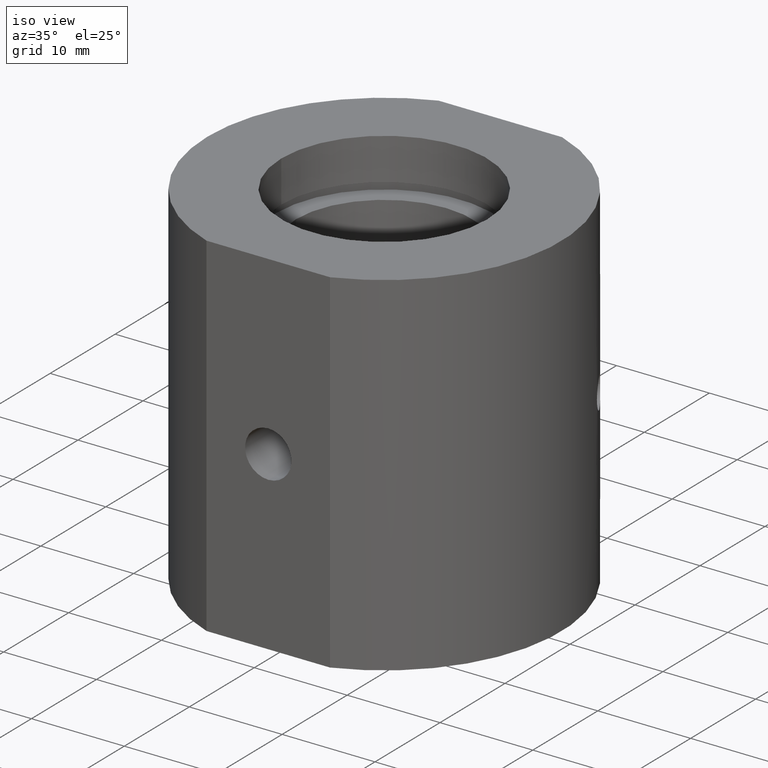
[diagram: clean part render]
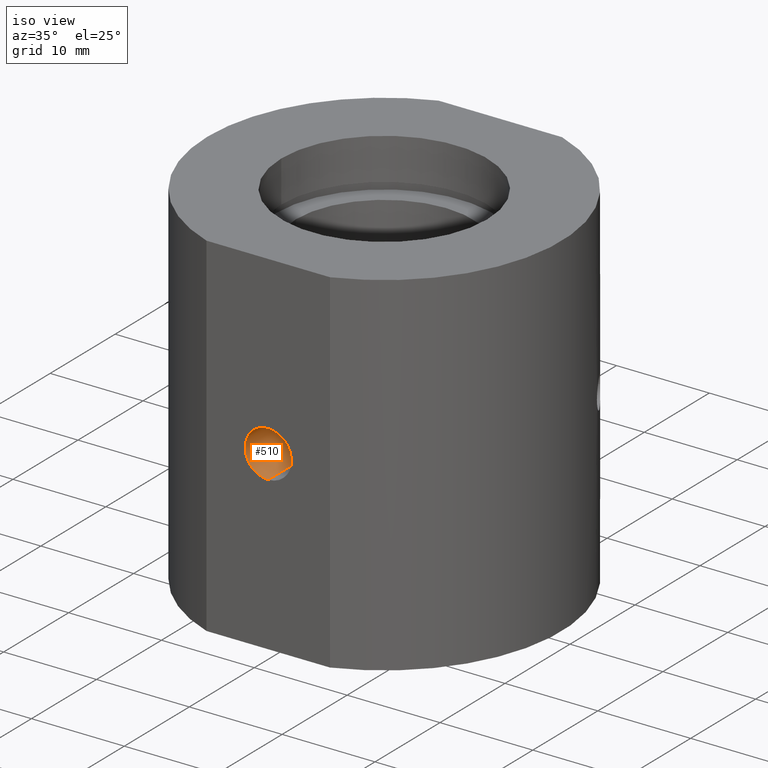
[diagram: same view with one face highlighted and labeled with its STEP entity id]
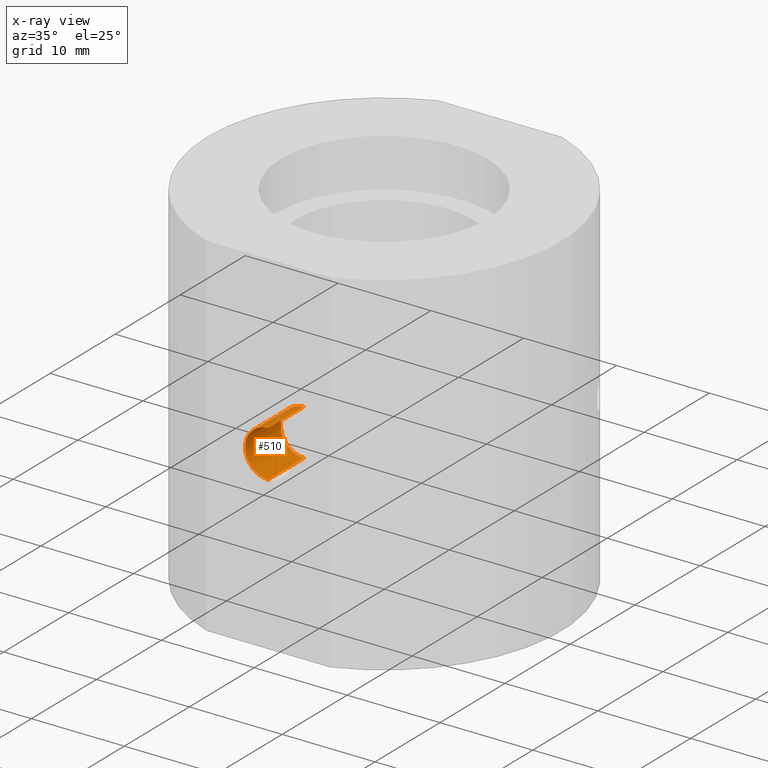
[diagram: x-ray of the same camera — body ghosted, the highlighted face saturated]
A machine part, iso view. The second image highlights one B-rep face of the part: STEP entity #510.
The next image is the same camera in x-ray: the body ghosted, the highlighted face saturated — about 1% of this face is hidden behind the body in this view.
In plain terms, the highlighted cylindrical surface (edge-blend (fillet) strip) has radius 2.5 mm, axis along (-0, -1, -0).
Its self-contained STEP definition (entity closure, byte-faithful):
#2 = DIRECTION ( 'NONE',  ( 0.0000000000000000000, 0.0000000000000000000, -1.000000000000000000 ) ) ;
#55 = VECTOR ( 'NONE', #774, 1000.000000000000000 ) ;
#90 = CIRCLE ( 'NONE', #659, 2.499999999999999100 ) ;
#122 = CARTESIAN_POINT ( 'NONE',  ( 5.204170427930421300E-015, -17.85000000000000100, -2.499999999999999100 ) ) ;
#164 = VERTEX_POINT ( 'NONE', #273 ) ;
#190 = CARTESIAN_POINT ( 'NONE',  ( 5.510332127717259900E-015, -17.85000000000000100, 2.499999999999998700 ) ) ;
#201 = LINE ( 'NONE', #1386, #1366 ) ;
#232 = CYLINDRICAL_SURFACE ( 'NONE', #310, 2.499999999999998700 ) ;
#249 = AXIS2_PLACEMENT_3D ( 'NONE', #1374, #487, #834 ) ;
#273 = CARTESIAN_POINT ( 'NONE',  ( 5.204170427930421300E-015, -12.35000000000000100, -2.499999999999997800 ) ) ;
#302 = EDGE_CURVE ( 'NONE', #1314, #852, #903, .T. ) ;
#310 = AXIS2_PLACEMENT_3D ( 'NONE', #459, #668, #2 ) ;
#459 = CARTESIAN_POINT ( 'NONE',  ( 5.204170427930421300E-015, -17.85000000000000100, 0.0000000000000000000 ) ) ;
#464 = DIRECTION ( 'NONE',  ( 0.0000000000000000000, 0.0000000000000000000, -1.000000000000000000 ) ) ;
#487 = DIRECTION ( 'NONE',  ( -0.0000000000000000000, -1.000000000000000000, -0.0000000000000000000 ) ) ;
#510 = ADVANCED_FACE ( 'NONE', ( #842 ), #232, .F. ) ;
#545 = ORIENTED_EDGE ( 'NONE', *, *, #1319, .F. ) ;
#656 = ORIENTED_EDGE ( 'NONE', *, *, #1004, .F. ) ;
#659 = AXIS2_PLACEMENT_3D ( 'NONE', #1135, #1143, #464 ) ;
#668 = DIRECTION ( 'NONE',  ( -0.0000000000000000000, -1.000000000000000000, -0.0000000000000000000 ) ) ;
#704 = ORIENTED_EDGE ( 'NONE', *, *, #826, .T. ) ;
#774 = DIRECTION ( 'NONE',  ( -0.0000000000000000000, -1.000000000000000000, -0.0000000000000000000 ) ) ;
#800 = CARTESIAN_POINT ( 'NONE',  ( 5.510332127717259900E-015, -17.85000000000000100, 2.499999999999999100 ) ) ;
#826 = EDGE_CURVE ( 'NONE', #852, #1341, #90, .T. ) ;
#834 = DIRECTION ( 'NONE',  ( 0.0000000000000000000, 0.0000000000000000000, -1.000000000000000000 ) ) ;
#842 = FACE_OUTER_BOUND ( 'NONE', #1311, .T. ) ;
#852 = VERTEX_POINT ( 'NONE', #800 ) ;
#903 = LINE ( 'NONE', #190, #55 ) ;
#1004 = EDGE_CURVE ( 'NONE', #1314, #164, #1025, .T. ) ;
#1010 = CARTESIAN_POINT ( 'NONE',  ( 5.510332127717259900E-015, -12.35000000000000100, 2.499999999999997800 ) ) ;
#1025 = CIRCLE ( 'NONE', #249, 2.499999999999997800 ) ;
#1135 = CARTESIAN_POINT ( 'NONE',  ( 5.204170427930421300E-015, -17.85000000000000100, 0.0000000000000000000 ) ) ;
#1143 = DIRECTION ( 'NONE',  ( -0.0000000000000000000, -1.000000000000000000, -0.0000000000000000000 ) ) ;
#1274 = DIRECTION ( 'NONE',  ( -0.0000000000000000000, -1.000000000000000000, -0.0000000000000000000 ) ) ;
#1311 = EDGE_LOOP ( 'NONE', ( #656, #1448, #704, #545 ) ) ;
#1314 = VERTEX_POINT ( 'NONE', #1010 ) ;
#1319 = EDGE_CURVE ( 'NONE', #164, #1341, #201, .T. ) ;
#1341 = VERTEX_POINT ( 'NONE', #122 ) ;
#1366 = VECTOR ( 'NONE', #1274, 1000.000000000000000 ) ;
#1374 = CARTESIAN_POINT ( 'NONE',  ( 5.204170427930421300E-015, -12.35000000000000100, 0.0000000000000000000 ) ) ;
#1386 = CARTESIAN_POINT ( 'NONE',  ( 5.204170427930421300E-015, -17.85000000000000100, -2.499999999999998700 ) ) ;
#1448 = ORIENTED_EDGE ( 'NONE', *, *, #302, .T. ) ;